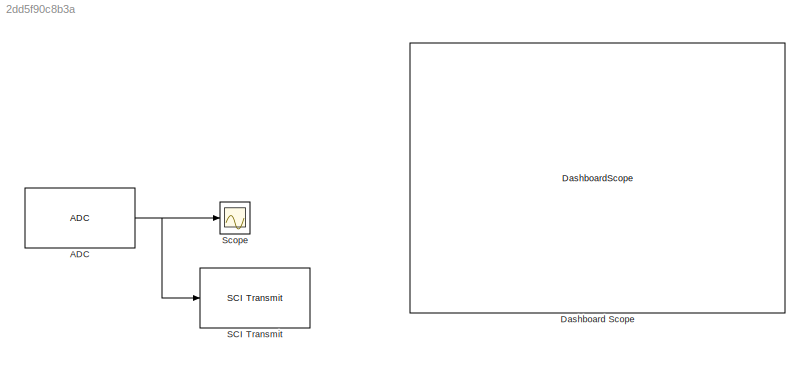
MODEL slx_2dd5f90c8b3a
KIND model
CONFIG AbsTol = auto
CONFIG EnableMultiTasking = on
CONFIG FixedStep = 0.001
CONFIG MaxStep = auto
CONFIG MinStep = auto
CONFIG RelTol = 1e-3
CONFIG SampleTimeConstraint = Unconstrained
CONFIG SolverName = FixedStepDiscrete
CONFIG StartTime = 0.0
CONFIG StopTime = Inf
BLOCK [Reference] ADC  REF=c2802xlib/ADC
  Ports = [0, 1]
  SourceBlock = c2802xlib/ADC
  SourceProductBaseCode = TIC2000
  SourceType = ADC Type 3-5
  UserDataPersistent = on
BLOCK [DashboardScope] Dashboard Scope
  Ymax = 5000
  Ymin = 0
BLOCK [Reference] SCI Transmit  REF=c280xlib/SCI Transmit
  Ports = [1]
  SourceBlock = c280xlib/SCI Transmit
  SourceProductBaseCode = TIC2000
  SourceType = C28x SCI Transmit
BLOCK [Scope] Scope
  Floating = off
  NumInputPorts = 1
  Ports = [1]
  ScopeSpecificationString = Simulink.scopes.TimeScopeBlockCfg('CurrentConfiguration', extmgr.ConfigurationSet(extmgr.Configuration('Core','General UI',true),extmgr.Configuration('Core','Source UI',true),extmgr.Configuration('Sources','WiredSimulink',true),extmgr.Configuration('Visuals','Time Domain',true,'SerializedDisplays',{struct('MinYLimReal','0','MaxYLimReal','5000','YLabelReal','','MinYLimMag','0','MaxYLimMag','10','Le...<+1471ch>
NET ADC:1 -> SCI Transmit:1, Scope:1
note: NET lines group one-source signal fan-out (src -> all destinations, sorted); 1:1 wires keep LINE
